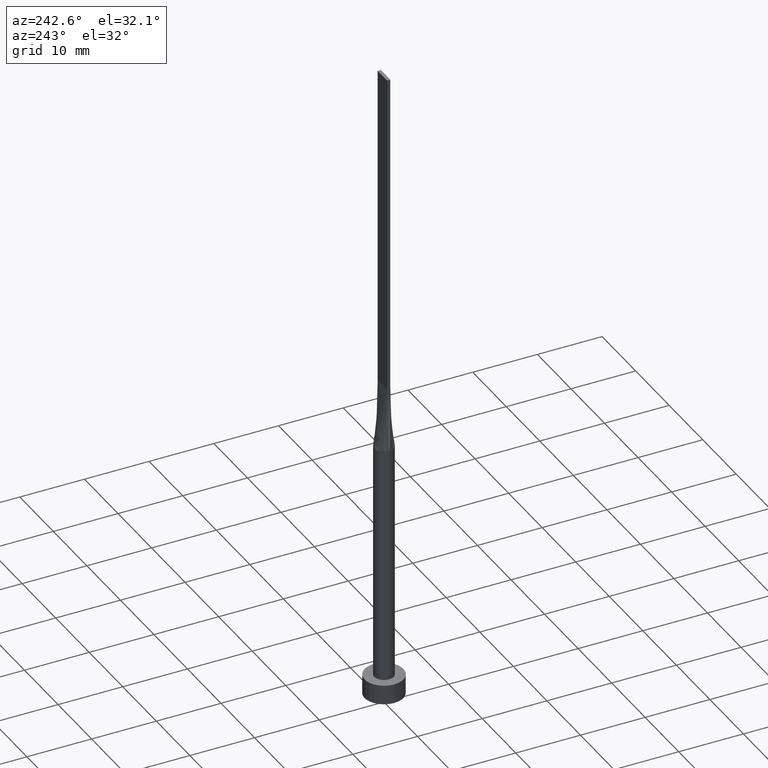
[diagram: clean part render]
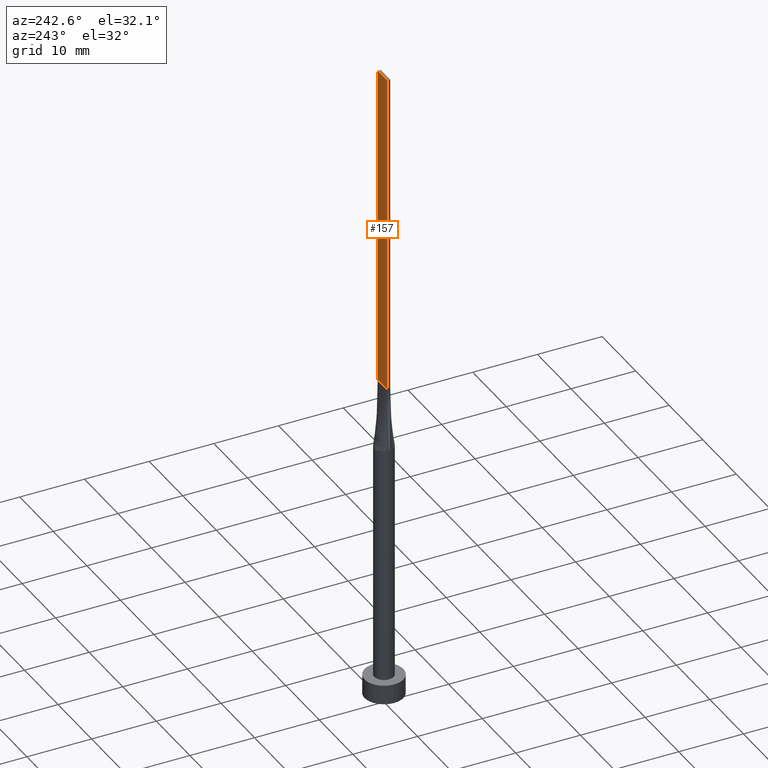
[diagram: same view with one face highlighted and labeled with its STEP entity id]
A machine part, auxiliary view. The second image highlights one B-rep face of the part: STEP entity #157.
In plain terms, the highlighted planar face has unit normal (0, -1, 0).
Its self-contained STEP definition (entity closure, byte-faithful):
#22 = EDGE_CURVE ( 'NONE', #98, #217, #387, .T. ) ;
#38 = ORIENTED_EDGE ( 'NONE', *, *, #89, .T. ) ;
#39 = EDGE_CURVE ( 'NONE', #98, #372, #513, .T. ) ;
#42 = EDGE_CURVE ( 'NONE', #372, #505, #257, .T. ) ;
#55 = VECTOR ( 'NONE', #580, 1000.000000000000000 ) ;
#74 = CARTESIAN_POINT ( 'NONE',  ( 1.399999999999999911, 0.2500000000000002220, 50.00000000000000000 ) ) ;
#78 = FACE_OUTER_BOUND ( 'NONE', #382, .T. ) ;
#89 = EDGE_CURVE ( 'NONE', #217, #505, #307, .T. ) ;
#98 = VERTEX_POINT ( 'NONE', #438 ) ;
#116 = CARTESIAN_POINT ( 'NONE',  ( 1.399999999999999911, 0.2500000000000002220, 100.0000000000000000 ) ) ;
#135 = CARTESIAN_POINT ( 'NONE',  ( -1.399999999999999911, 0.2500000000000002220, 100.0000000000000000 ) ) ;
#157 = ADVANCED_FACE ( 'NONE', ( #78 ), #216, .F. ) ;
#174 = DIRECTION ( 'NONE',  ( 0.000000000000000000, -0.000000000000000000, -1.000000000000000000 ) ) ;
#183 = AXIS2_PLACEMENT_3D ( 'NONE', #394, #518, #174 ) ;
#188 = ORIENTED_EDGE ( 'NONE', *, *, #39, .F. ) ;
#205 = CARTESIAN_POINT ( 'NONE',  ( 1.399999999999999911, 0.2500000000000002220, 100.0000000000000000 ) ) ;
#216 = PLANE ( 'NONE',  #183 ) ;
#217 = VERTEX_POINT ( 'NONE', #74 ) ;
#257 = LINE ( 'NONE', #341, #368 ) ;
#292 = DIRECTION ( 'NONE',  ( -1.000000000000000000, 0.000000000000000000, 0.000000000000000000 ) ) ;
#307 = LINE ( 'NONE', #529, #55 ) ;
#320 = ORIENTED_EDGE ( 'NONE', *, *, #42, .F. ) ;
#331 = VECTOR ( 'NONE', #292, 1000.000000000000000 ) ;
#341 = CARTESIAN_POINT ( 'NONE',  ( -1.399999999999999911, 0.2500000000000002220, 100.0000000000000000 ) ) ;
#368 = VECTOR ( 'NONE', #478, 1000.000000000000000 ) ;
#372 = VERTEX_POINT ( 'NONE', #135 ) ;
#382 = EDGE_LOOP ( 'NONE', ( #38, #320, #188, #499 ) ) ;
#385 = CARTESIAN_POINT ( 'NONE',  ( -1.399999999999999911, 0.2500000000000002220, 50.00000000000000000 ) ) ;
#387 = LINE ( 'NONE', #116, #543 ) ;
#394 = CARTESIAN_POINT ( 'NONE',  ( 1.399999999999999911, 0.2500000000000002220, 100.0000000000000000 ) ) ;
#438 = CARTESIAN_POINT ( 'NONE',  ( 1.399999999999999911, 0.2500000000000002220, 100.0000000000000000 ) ) ;
#478 = DIRECTION ( 'NONE',  ( -0.000000000000000000, -0.000000000000000000, -1.000000000000000000 ) ) ;
#499 = ORIENTED_EDGE ( 'NONE', *, *, #22, .T. ) ;
#505 = VERTEX_POINT ( 'NONE', #385 ) ;
#513 = LINE ( 'NONE', #205, #331 ) ;
#518 = DIRECTION ( 'NONE',  ( 0.000000000000000000, -1.000000000000000000, 0.000000000000000000 ) ) ;
#529 = CARTESIAN_POINT ( 'NONE',  ( -1.399999999999999911, 0.2500000000000002220, 50.00000000000000000 ) ) ;
#543 = VECTOR ( 'NONE', #567, 1000.000000000000000 ) ;
#567 = DIRECTION ( 'NONE',  ( -0.000000000000000000, -0.000000000000000000, -1.000000000000000000 ) ) ;
#580 = DIRECTION ( 'NONE',  ( -1.000000000000000000, -0.000000000000000000, -0.000000000000000000 ) ) ;